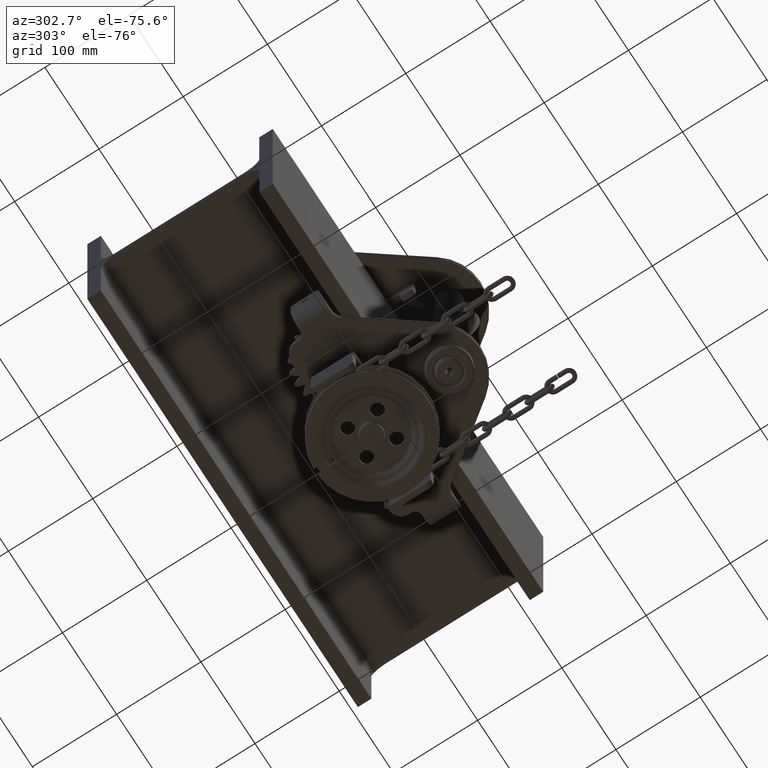
[diagram: clean part render]
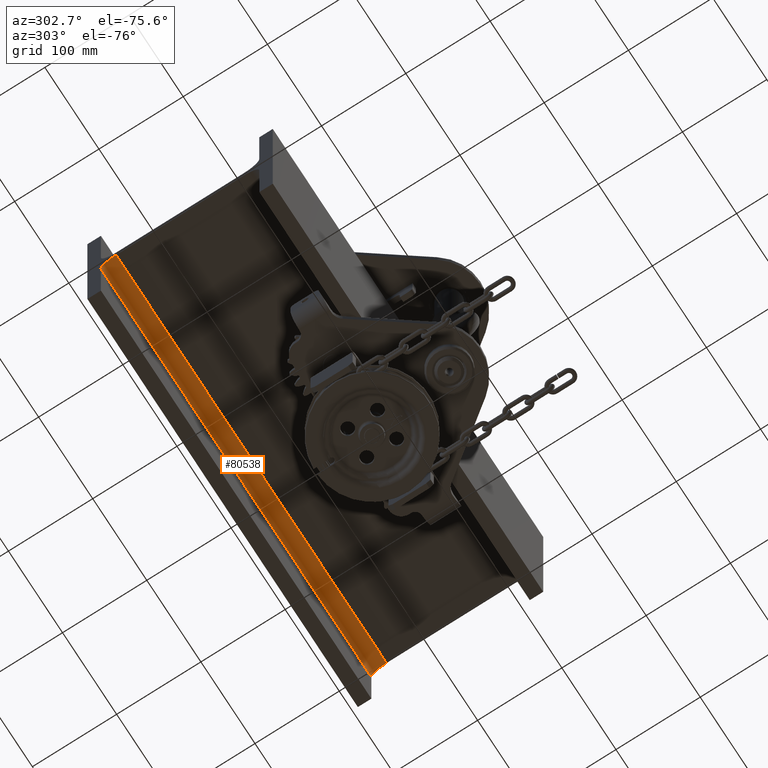
[diagram: same view with one face highlighted and labeled with its STEP entity id]
A machine part, auxiliary view. The second image highlights one B-rep face of the part: STEP entity #80538.
In plain terms, the highlighted cylindrical surface (edge-blend (fillet) strip) has radius 18 mm, axis along (1, 0, 0).
Its self-contained STEP definition (entity closure, byte-faithful):
#3141 = ORIENTED_EDGE ( 'NONE', *, *, #66924, .T. ) ;
#4696 = DIRECTION ( 'NONE',  ( 1.000000000000000000, 0.0000000000000000000, 7.703719777548941700E-034 ) ) ;
#5138 = CIRCLE ( 'NONE', #39646, 17.99999999999997500 ) ;
#8491 = FACE_OUTER_BOUND ( 'NONE', #79347, .T. ) ;
#20379 = CARTESIAN_POINT ( 'NONE',  ( -250.0000000000001100, 75.99999999999998600, -4.749999999999552400 ) ) ;
#20550 = CARTESIAN_POINT ( 'NONE',  ( -250.0000000000001100, 94.00000000000000000, -22.74999999999952000 ) ) ;
#21023 = CARTESIAN_POINT ( 'NONE',  ( -250.0000000000001100, 75.99999999999998600, -22.74999999999952700 ) ) ;
#22078 = DIRECTION ( 'NONE',  ( 0.0000000000000000000, 0.0000000000000000000, -1.000000000000000000 ) ) ;
#22184 = EDGE_CURVE ( 'NONE', #85428, #27578, #80302, .T. ) ;
#27578 = VERTEX_POINT ( 'NONE', #51267 ) ;
#34634 = DIRECTION ( 'NONE',  ( 1.000000000000000000, 0.0000000000000000000, 7.703719777548941700E-034 ) ) ;
#36078 = DIRECTION ( 'NONE',  ( 1.000000000000000000, 0.0000000000000000000, 7.703719777548941700E-034 ) ) ;
#37671 = CARTESIAN_POINT ( 'NONE',  ( -250.0000000000001100, 75.99999999999998600, -4.749999999999552400 ) ) ;
#39646 = AXIS2_PLACEMENT_3D ( 'NONE', #62301, #61631, #22078 ) ;
#41324 = VERTEX_POINT ( 'NONE', #20550 ) ;
#43695 = CIRCLE ( 'NONE', #44937, 17.99999999999997500 ) ;
#44937 = AXIS2_PLACEMENT_3D ( 'NONE', #74403, #34634, #90512 ) ;
#45251 = AXIS2_PLACEMENT_3D ( 'NONE', #21023, #53943, #85017 ) ;
#51267 = CARTESIAN_POINT ( 'NONE',  ( 250.0000000000000000, 75.99999999999998600, -4.749999999999552400 ) ) ;
#53943 = DIRECTION ( 'NONE',  ( 1.000000000000000000, 0.0000000000000000000, 7.703719777548941700E-034 ) ) ;
#58541 = EDGE_CURVE ( 'NONE', #41324, #85428, #5138, .T. ) ;
#61600 = VECTOR ( 'NONE', #4696, 1000.000000000000000 ) ;
#61631 = DIRECTION ( 'NONE',  ( 1.000000000000000000, 0.0000000000000000000, 7.703719777548941700E-034 ) ) ;
#62301 = CARTESIAN_POINT ( 'NONE',  ( -250.0000000000001100, 75.99999999999998600, -22.74999999999952700 ) ) ;
#66924 = EDGE_CURVE ( 'NONE', #41324, #89718, #75793, .T. ) ;
#68309 = VECTOR ( 'NONE', #36078, 1000.000000000000000 ) ;
#69709 = ORIENTED_EDGE ( 'NONE', *, *, #88492, .T. ) ;
#74403 = CARTESIAN_POINT ( 'NONE',  ( 250.0000000000000000, 75.99999999999998600, -22.74999999999952700 ) ) ;
#74473 = CARTESIAN_POINT ( 'NONE',  ( -250.0000000000001100, 94.00000000000000000, -22.74999999999952000 ) ) ;
#75793 = LINE ( 'NONE', #74473, #68309 ) ;
#79347 = EDGE_LOOP ( 'NONE', ( #69709, #94507, #97228, #3141 ) ) ;
#80302 = LINE ( 'NONE', #20379, #61600 ) ;
#80538 = ADVANCED_FACE ( 'NONE', ( #8491 ), #97978, .F. ) ;
#85017 = DIRECTION ( 'NONE',  ( 0.0000000000000000000, 0.0000000000000000000, -1.000000000000000000 ) ) ;
#85428 = VERTEX_POINT ( 'NONE', #37671 ) ;
#88492 = EDGE_CURVE ( 'NONE', #89718, #27578, #43695, .T. ) ;
#89718 = VERTEX_POINT ( 'NONE', #91606 ) ;
#90512 = DIRECTION ( 'NONE',  ( 0.0000000000000000000, 0.0000000000000000000, -1.000000000000000000 ) ) ;
#91606 = CARTESIAN_POINT ( 'NONE',  ( 250.0000000000000000, 94.00000000000000000, -22.74999999999952000 ) ) ;
#94507 = ORIENTED_EDGE ( 'NONE', *, *, #22184, .F. ) ;
#97228 = ORIENTED_EDGE ( 'NONE', *, *, #58541, .F. ) ;
#97978 = CYLINDRICAL_SURFACE ( 'NONE', #45251, 17.99999999999997500 ) ;